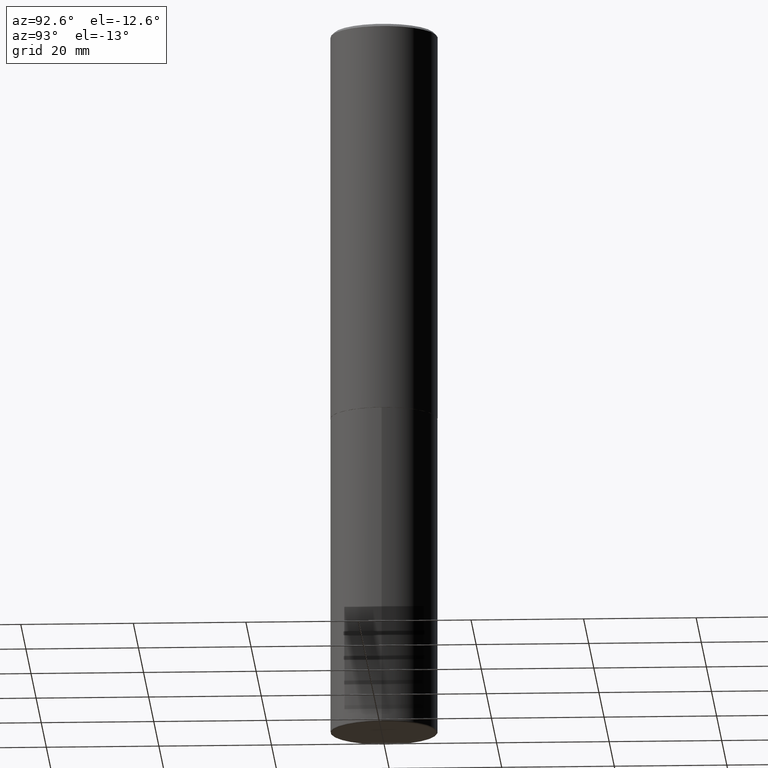
[diagram: clean part render]
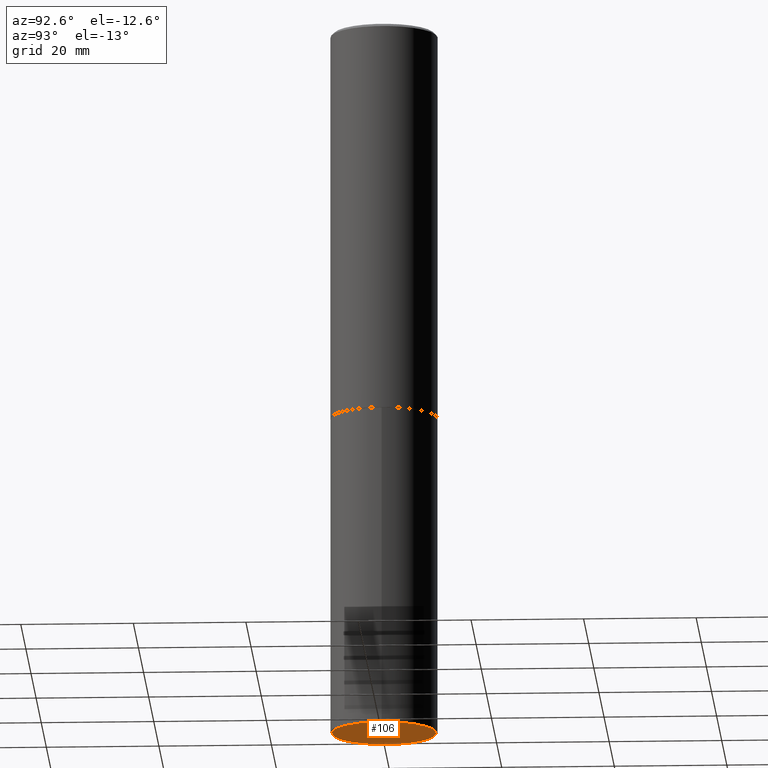
[diagram: same view with one face highlighted and labeled with its STEP entity id]
A machine part, auxiliary view. The second image highlights one B-rep face of the part: STEP entity #106.
In plain terms, the highlighted planar face has unit normal (0, -0, -1).
Its self-contained STEP definition (entity closure, byte-faithful):
#5 = EDGE_LOOP ( 'NONE', ( #57, #343 ) ) ;
#11 = PLANE ( 'NONE',  #213 ) ;
#18 = DIRECTION ( 'NONE',  ( -1.000000000000000000, 6.982962677686265922E-15, -4.876176775795935793E-29 ) ) ;
#25 = AXIS2_PLACEMENT_3D ( 'NONE', #413, #54, #381 ) ;
#28 = VERTEX_POINT ( 'NONE', #37 ) ;
#37 = CARTESIAN_POINT ( 'NONE',  ( 0.3650000000000000466, -2.000618807157122291E-14, -5.000000000000000888 ) ) ;
#54 = DIRECTION ( 'NONE',  ( -2.445468806185136597E-29, 3.491481338843145583E-15, 1.000000000000000000 ) ) ;
#57 = ORIENTED_EDGE ( 'NONE', *, *, #392, .F. ) ;
#106 = ADVANCED_FACE ( 'NONE', ( #238 ), #11, .T. ) ;
#122 = AXIS2_PLACEMENT_3D ( 'NONE', #166, #156, #301 ) ;
#156 = DIRECTION ( 'NONE',  ( -2.445468806185136597E-29, 3.491481338843145583E-15, 1.000000000000000000 ) ) ;
#165 = CIRCLE ( 'NONE', #25, 0.3650000000000000466 ) ;
#166 = CARTESIAN_POINT ( 'NONE',  ( 1.222734403092568523E-28, -1.745740669421573304E-14, -5.000000000000000888 ) ) ;
#213 = AXIS2_PLACEMENT_3D ( 'NONE', #267, #399, #18 ) ;
#238 = FACE_OUTER_BOUND ( 'NONE', #5, .T. ) ;
#267 = CARTESIAN_POINT ( 'NONE',  ( 1.774526178394363037E-29, -3.242643679648566706E-14, -5.000000000000000000 ) ) ;
#288 = EDGE_CURVE ( 'NONE', #352, #28, #165, .T. ) ;
#301 = DIRECTION ( 'NONE',  ( 1.000000000000000000, -6.982962677686270655E-15, 0.000000000000000000 ) ) ;
#343 = ORIENTED_EDGE ( 'NONE', *, *, #288, .F. ) ;
#352 = VERTEX_POINT ( 'NONE', #367 ) ;
#367 = CARTESIAN_POINT ( 'NONE',  ( -0.3650000000000000466, -1.481094116520914498E-14, -5.000000000000000888 ) ) ;
#381 = DIRECTION ( 'NONE',  ( 1.000000000000000000, -6.982962677686270655E-15, 0.000000000000000000 ) ) ;
#390 = CIRCLE ( 'NONE', #122, 0.3650000000000000466 ) ;
#392 = EDGE_CURVE ( 'NONE', #28, #352, #390, .T. ) ;
#399 = DIRECTION ( 'NONE',  ( 2.438088387897960049E-29, -3.491481338843145188E-15, -1.000000000000000000 ) ) ;
#413 = CARTESIAN_POINT ( 'NONE',  ( 1.222734403092568523E-28, -1.745740669421573304E-14, -5.000000000000000888 ) ) ;